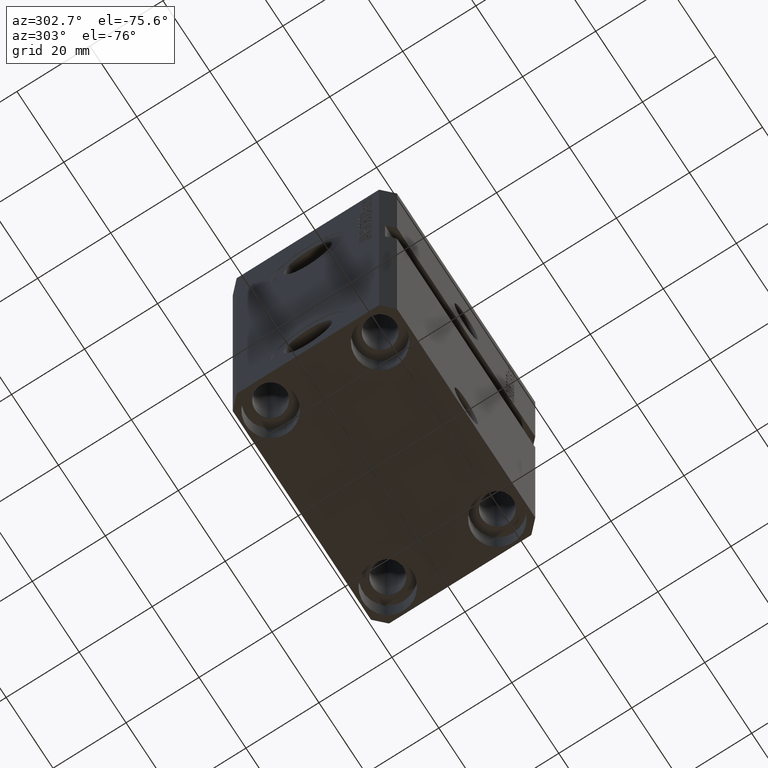
[diagram: clean part render]
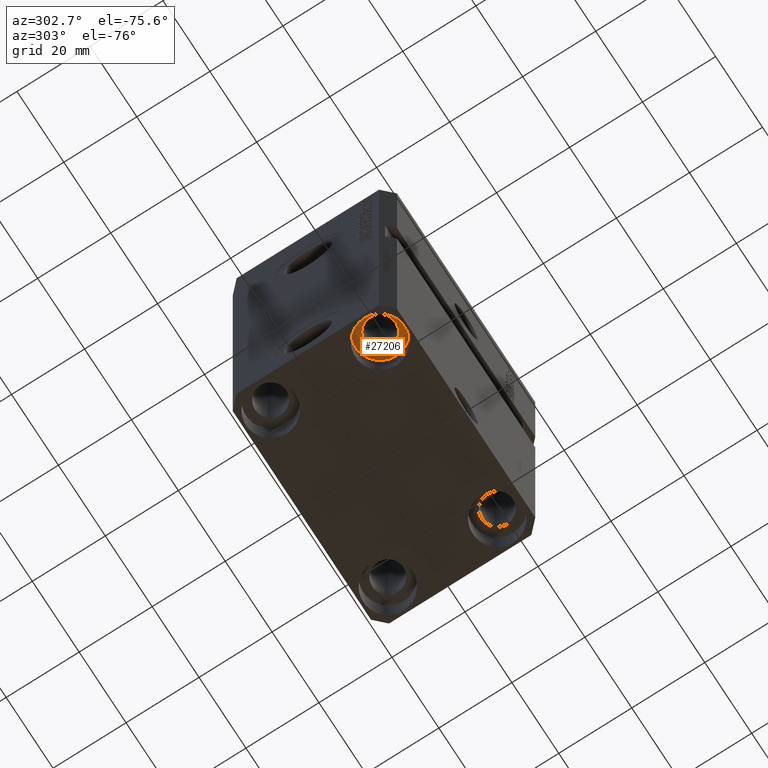
[diagram: same view with one face highlighted and labeled with its STEP entity id]
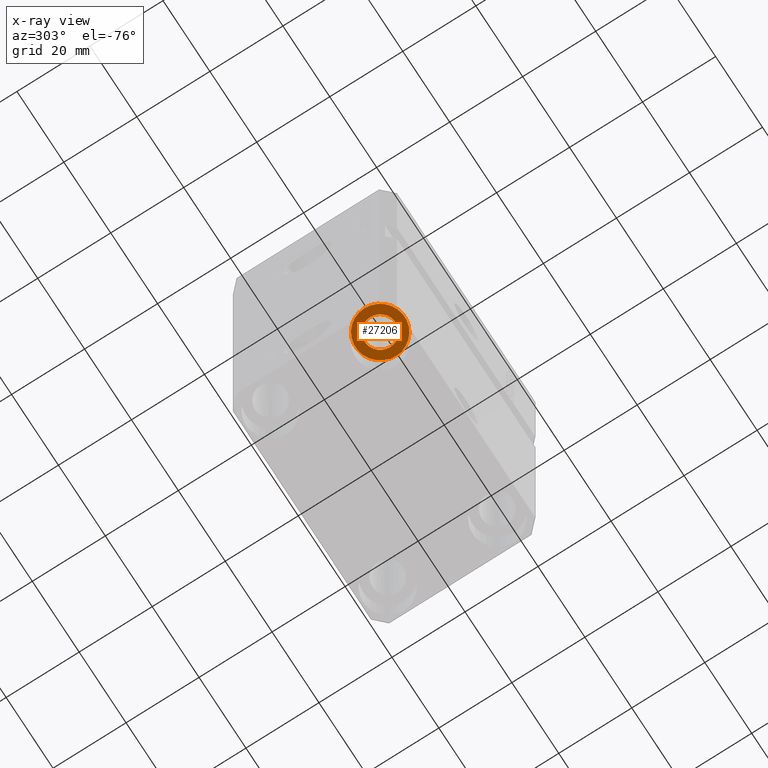
[diagram: x-ray of the same camera — body ghosted, the highlighted face saturated]
A machine part, auxiliary view. The second image highlights one B-rep face of the part: STEP entity #27206.
The next image is the same camera in x-ray: the body ghosted, the highlighted face saturated — about 0% of this face is hidden behind the body in this view.
In plain terms, the highlighted planar face has unit normal (0, 0, -1).
Its self-contained STEP definition (entity closure, byte-faithful):
#251 = PLANE ( 'NONE',  #27779 ) ;
#759 = CIRCLE ( 'NONE', #6789, 4.250000000041540105 ) ;
#800 = CARTESIAN_POINT ( 'NONE',  ( -25.00000000000000355, -15.00000000000000000, -98.00000000000000000 ) ) ;
#2517 = VERTEX_POINT ( 'NONE', #3136 ) ;
#2774 = CARTESIAN_POINT ( 'NONE',  ( -25.00000000000000355, -15.00000000000000000, -98.00000000000000000 ) ) ;
#3065 = EDGE_CURVE ( 'NONE', #10517, #19960, #17424, .T. ) ;
#3136 = CARTESIAN_POINT ( 'NONE',  ( -29.25000000004154543, -15.00000000000000000, -98.00000000000000000 ) ) ;
#6116 = CARTESIAN_POINT ( 'NONE',  ( -20.74999999995846522, -15.00000000000000000, -98.00000000000000000 ) ) ;
#6789 = AXIS2_PLACEMENT_3D ( 'NONE', #7936, #22530, #12181 ) ;
#7005 = EDGE_CURVE ( 'NONE', #2517, #29571, #17651, .T. ) ;
#7556 = ORIENTED_EDGE ( 'NONE', *, *, #3065, .F. ) ;
#7936 = CARTESIAN_POINT ( 'NONE',  ( -25.00000000000000355, -15.00000000000000000, -98.00000000000000000 ) ) ;
#8114 = DIRECTION ( 'NONE',  ( 0.000000000000000000, 0.000000000000000000, -1.000000000000000000 ) ) ;
#8202 = ORIENTED_EDGE ( 'NONE', *, *, #7005, .F. ) ;
#8608 = AXIS2_PLACEMENT_3D ( 'NONE', #38452, #24114, #20112 ) ;
#8930 = DIRECTION ( 'NONE',  ( 1.000000000000000000, 0.000000000000000000, 0.000000000000000000 ) ) ;
#10517 = VERTEX_POINT ( 'NONE', #18415 ) ;
#11411 = CIRCLE ( 'NONE', #21189, 6.750000000041541881 ) ;
#11423 = DIRECTION ( 'NONE',  ( 1.000000000000000000, 0.000000000000000000, 0.000000000000000000 ) ) ;
#11671 = EDGE_LOOP ( 'NONE', ( #19392, #8202 ) ) ;
#12181 = DIRECTION ( 'NONE',  ( -1.000000000000000000, 0.000000000000000000, 0.000000000000000000 ) ) ;
#12478 = DIRECTION ( 'NONE',  ( -0.000000000000000000, -0.000000000000000000, 1.000000000000000000 ) ) ;
#13622 = DIRECTION ( 'NONE',  ( 1.000000000000000000, 0.000000000000000000, 0.000000000000000000 ) ) ;
#17424 = CIRCLE ( 'NONE', #27973, 6.750000000041541881 ) ;
#17651 = CIRCLE ( 'NONE', #8608, 4.250000000041540105 ) ;
#18175 = FACE_BOUND ( 'NONE', #11671, .T. ) ;
#18380 = CARTESIAN_POINT ( 'NONE',  ( -18.24999999995845812, -15.00000000000000000, -98.00000000000000000 ) ) ;
#18415 = CARTESIAN_POINT ( 'NONE',  ( -31.75000000004154899, -15.00000000000000000, -98.00000000000000000 ) ) ;
#19392 = ORIENTED_EDGE ( 'NONE', *, *, #38868, .F. ) ;
#19770 = CARTESIAN_POINT ( 'NONE',  ( -25.00000000000000355, -15.00000000000000000, -98.00000000000000000 ) ) ;
#19960 = VERTEX_POINT ( 'NONE', #18380 ) ;
#20112 = DIRECTION ( 'NONE',  ( -1.000000000000000000, 0.000000000000000000, 0.000000000000000000 ) ) ;
#21189 = AXIS2_PLACEMENT_3D ( 'NONE', #2774, #39455, #13622 ) ;
#22530 = DIRECTION ( 'NONE',  ( 0.000000000000000000, 0.000000000000000000, -1.000000000000000000 ) ) ;
#24114 = DIRECTION ( 'NONE',  ( 0.000000000000000000, 0.000000000000000000, -1.000000000000000000 ) ) ;
#24641 = EDGE_LOOP ( 'NONE', ( #7556, #33850 ) ) ;
#27206 = ADVANCED_FACE ( 'NONE', ( #18175, #32533 ), #251, .T. ) ;
#27779 = AXIS2_PLACEMENT_3D ( 'NONE', #800, #8114, #11423 ) ;
#27973 = AXIS2_PLACEMENT_3D ( 'NONE', #19770, #12478, #8930 ) ;
#29571 = VERTEX_POINT ( 'NONE', #6116 ) ;
#32533 = FACE_OUTER_BOUND ( 'NONE', #24641, .T. ) ;
#33143 = EDGE_CURVE ( 'NONE', #19960, #10517, #11411, .T. ) ;
#33850 = ORIENTED_EDGE ( 'NONE', *, *, #33143, .F. ) ;
#38452 = CARTESIAN_POINT ( 'NONE',  ( -25.00000000000000355, -15.00000000000000000, -98.00000000000000000 ) ) ;
#38868 = EDGE_CURVE ( 'NONE', #29571, #2517, #759, .T. ) ;
#39455 = DIRECTION ( 'NONE',  ( -0.000000000000000000, -0.000000000000000000, 1.000000000000000000 ) ) ;